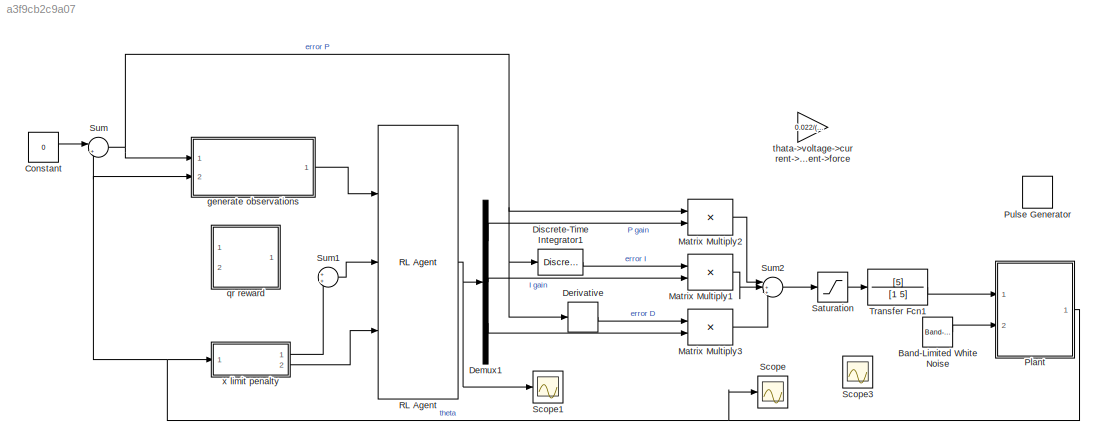
MODEL slx_a3f9cb2c9a07
KIND model
CONFIG AbsTol = auto
CONFIG EnableMultiTasking = off
CONFIG FixedStep = auto
CONFIG MaxStep = auto
CONFIG MinStep = auto
CONFIG RelTol = 1e-3
CONFIG SampleTimeConstraint = Unconstrained
CONFIG Solver = VariableStepAuto
CONFIG SolverName = VariableStepAuto
CONFIG StartTime = 0.0
CONFIG StopTime = 10.0
WORKSPACE source: mxarray member
WORKSPACE Kd = 10
WORKSPACE L = 0.5
WORKSPACE Ts = 0.5
WORKSPACE g = 9.81
WORKSPACE mCart = 1
WORKSPACE mPend = 1
WORKSPACE theta0 = 0
BLOCK [Reference] Band-Limited White Noise  REF=simulink/Sources/Band-Limited
White Noise
  Ports = [0, 1]
  SourceBlock = simulink/Sources/Band-Limited\nWhite Noise
  SourceProductBaseCode = SL
  SourceType = Band-Limited White Noise.
BLOCK [Constant] Constant
  Value = 0
BLOCK [Demux] Demux1
  Outputs = 3
  Ports = [1, 3]
BLOCK [Derivative] Derivative
BLOCK [DiscreteIntegrator] Discrete-Time Integrator1
  ICPrevOutput = DiscIntNeverNeededParam
  ICPrevScaledInput = DiscIntNeverNeededParam
  InitialConditionSetting = Auto
  Ports = [1, 1]
  SampleTime = 0.5
BLOCK [Product] Matrix Multiply1
  Inputs = **
  Ports = [2, 1]
BLOCK [Product] Matrix Multiply2
  Inputs = **
  Ports = [2, 1]
BLOCK [Product] Matrix Multiply3
  Inputs = **
  Ports = [2, 1]
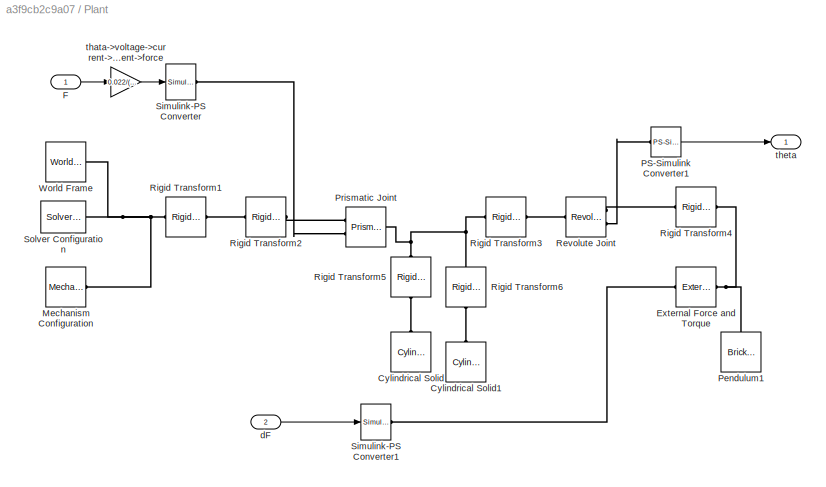
BLOCK [SubSystem] Plant
  Ports = [2, 1]
  RequestExecContextInheritance = off
BLOCK [Reference] Plant/Cylindrical Solid  REF=sm_lib/Body Elements/Cylindrical Solid
  NameLocation = right
  Ports = [0, 0, 0, 0, 0, 0, 1]
  SourceBlock = sm_lib/Body Elements/Cylindrical Solid
  SourceProductBaseCode = MS
  SourceType = Cylindrical Solid
BLOCK [Reference] Plant/Cylindrical Solid1  REF=sm_lib/Body Elements/Cylindrical Solid
  NameLocation = right
  Ports = [0, 0, 0, 0, 0, 0, 1]
  SourceBlock = sm_lib/Body Elements/Cylindrical Solid
  SourceProductBaseCode = MS
  SourceType = Cylindrical Solid
BLOCK [Reference] Plant/External Force and Torque  REF=sm_lib/Forces and
Torques/External Force
and Torque
  Ports = [0, 0, 0, 0, 0, 1, 1]
  SourceBlock = sm_lib/Forces and\nTorques/External Force\nand Torque
  SourceProductBaseCode = MS
  SourceType = External Force\nand Torque
BLOCK [Inport] Plant/F
BLOCK [Reference] Plant/Mechanism Configuration  REF=sm_lib/Utilities/Mechanism
Configuration
  Ports = [0, 0, 0, 0, 0, 0, 1]
  SourceBlock = sm_lib/Utilities/Mechanism\nConfiguration
  SourceProductBaseCode = MS
  SourceType = Mechanism\nConfiguration
BLOCK [Reference] Plant/PS-Simulink Converter1  REF=nesl_utility/PS-Simulink
Converter
  Ports = [0, 1, 0, 0, 0, 1]
  SourceBlock = nesl_utility/PS-Simulink\nConverter
  SourceProductBaseCode = MT,SS
  SourceType = PS-Simulink\nConverter
BLOCK [Reference] Plant/Pendulum1  REF=sm_lib/Body Elements/Brick Solid
  NameLocation = right
  Ports = [0, 0, 0, 0, 0, 0, 1]
  SourceBlock = sm_lib/Body Elements/Brick Solid
  SourceProductBaseCode = MS
  SourceType = Brick Solid
BLOCK [Reference] Plant/Prismatic Joint  REF=sm_lib/Joints/Prismatic
Joint
  Ports = [0, 0, 0, 0, 0, 2, 1]
  SourceBlock = sm_lib/Joints/Prismatic\nJoint
  SourceProductBaseCode = MS
  SourceType = Prismatic\nJoint
BLOCK [Reference] Plant/Revolute Joint  REF=sm_lib/Joints/Revolute Joint
  Ports = [0, 0, 0, 0, 0, 1, 2]
  SourceBlock = sm_lib/Joints/Revolute Joint
  SourceProductBaseCode = MS
  SourceType = Revolute Joint
BLOCK [Reference] Plant/Rigid Transform1  REF=sm_lib/Frames and
Transforms/Rigid
Transform
  Ports = [0, 0, 0, 0, 0, 1, 1]
  SourceBlock = sm_lib/Frames and\nTransforms/Rigid\nTransform
  SourceProductBaseCode = MS
  SourceType = Rigid\nTransform
BLOCK [Reference] Plant/Rigid Transform2  REF=sm_lib/Frames and
Transforms/Rigid
Transform
  Ports = [0, 0, 0, 0, 0, 1, 1]
  SourceBlock = sm_lib/Frames and\nTransforms/Rigid\nTransform
  SourceProductBaseCode = MS
  SourceType = Rigid\nTransform
BLOCK [Reference] Plant/Rigid Transform3  REF=sm_lib/Frames and
Transforms/Rigid
Transform
  Ports = [0, 0, 0, 0, 0, 1, 1]
  SourceBlock = sm_lib/Frames and\nTransforms/Rigid\nTransform
  SourceProductBaseCode = MS
  SourceType = Rigid\nTransform
BLOCK [Reference] Plant/Rigid Transform4  REF=sm_lib/Frames and
Transforms/Rigid
Transform
  Ports = [0, 0, 0, 0, 0, 1, 1]
  SourceBlock = sm_lib/Frames and\nTransforms/Rigid\nTransform
  SourceProductBaseCode = MS
  SourceType = Rigid\nTransform
BLOCK [Reference] Plant/Rigid Transform5  REF=sm_lib/Frames and
Transforms/Rigid
Transform
  NameLocation = left
  Ports = [0, 0, 0, 0, 0, 1, 1]
  SourceBlock = sm_lib/Frames and\nTransforms/Rigid\nTransform
  SourceProductBaseCode = MS
  SourceType = Rigid\nTransform
BLOCK [Reference] Plant/Rigid Transform6  REF=sm_lib/Frames and
Transforms/Rigid
Transform
  NameLocation = left
  Ports = [0, 0, 0, 0, 0, 1, 1]
  SourceBlock = sm_lib/Frames and\nTransforms/Rigid\nTransform
  SourceProductBaseCode = MS
  SourceType = Rigid\nTransform
BLOCK [Reference] Plant/Simulink-PS Converter  REF=nesl_utility/Simulink-PS
Converter
  Ports = [1, 0, 0, 0, 0, 0, 1]
  SourceBlock = nesl_utility/Simulink-PS\nConverter
  SourceProductBaseCode = MT,SS
  SourceType = Simulink-PS\nConverter
BLOCK [Reference] Plant/Simulink-PS Converter1  REF=nesl_utility/Simulink-PS
Converter
  Ports = [1, 0, 0, 0, 0, 0, 1]
  SourceBlock = nesl_utility/Simulink-PS\nConverter
  SourceProductBaseCode = MT,SS
  SourceType = Simulink-PS\nConverter
BLOCK [Reference] Plant/Solver Configuration  REF=nesl_utility/Solver
Configuration
  Ports = [0, 0, 0, 0, 0, 0, 1]
  SourceBlock = nesl_utility/Solver\nConfiguration
  SourceProductBaseCode = MT,SS
  SourceType = Solver\nConfiguration
BLOCK [Reference] Plant/World Frame  REF=sm_lib/Frames and
Transforms/World Frame
  Ports = [0, 0, 0, 0, 0, 0, 1]
  SourceBlock = sm_lib/Frames and\nTransforms/World Frame
  SourceProductBaseCode = MS
  SourceType = World Frame
BLOCK [Inport] Plant/dF
  Port = 2
BLOCK [Gain] Plant/thata->voltage->current->moment->force
  Gain = 0.022/(1.2*0.04)
BLOCK [Outport] Plant/theta
  VectorParamsAs1DForOutWhenUnconnected = off
BLOCK [DiscretePulseGenerator] Pulse Generator
  Amplitude = 0.5
  Commented = on
  Period = 10
  Ports = [0, 1]
  PulseType = Time based
BLOCK [Reference] RL Agent  REF=rllib/RL Agent
  Ports = [3, 1]
  SourceBlock = rllib/RL Agent
  SourceProductBaseCode = RL
  SourceType = RL Agent
BLOCK [Saturate] Saturation
  LowerLimit = -12
  UpperLimit = 12
BLOCK [Scope] Scope
  Floating = off
  NumInputPorts = 1
  Ports = [1]
  ScopeSpecificationString = Simulink.scopes.TimeScopeBlockCfg('CurrentConfiguration', extmgr.ConfigurationSet(extmgr.Configuration('Core','General UI',true),extmgr.Configuration('Core','Source UI',true),extmgr.Configuration('Sources','WiredSimulink',true,'DataLoggingVariableName','ScopeData1'),extmgr.Configuration('Visuals','Time Domain',true,'SerializedDisplays',{struct('MinYLimReal','-0.03604','MaxYLimReal','0.004','YLabel...<+1390ch>
BLOCK [Scope] Scope1
  Floating = off
  NumInputPorts = 1
  Ports = [1]
  ScopeSpecificationString = Simulink.scopes.TimeScopeBlockCfg('CurrentConfiguration', extmgr.ConfigurationSet(extmgr.Configuration('Core','General UI',true),extmgr.Configuration('Core','Source UI',true),extmgr.Configuration('Sources','WiredSimulink',true,'DataLoggingVariableName','ScopeData1'),extmgr.Configuration('Visuals','Time Domain',true,'SerializedDisplays',{struct('MinYLimReal','-40.94123','MaxYLimReal','121.13009','Y...<+1460ch>
BLOCK [Scope] Scope3
  Commented = on
  Floating = off
  NumInputPorts = 1
  Ports = [1]
  ScopeSpecificationString = Simulink.scopes.TimeScopeBlockCfg('CurrentConfiguration', extmgr.ConfigurationSet(extmgr.Configuration('Core','General UI',true),extmgr.Configuration('Core','Source UI',true),extmgr.Configuration('Sources','WiredSimulink',true,'DataLoggingVariableName','ScopeData1'),extmgr.Configuration('Visuals','Time Domain',true,'SerializedDisplays',{struct('MinYLimReal','-0.7063','MaxYLimReal','4.17639','YLabe...<+1435ch>
BLOCK [Sum] Sum
  Inputs = |+-
  Ports = [2, 1]
BLOCK [Sum] Sum1
  Ports = [2, 1]
BLOCK [Sum] Sum2
  Inputs = |+++
  Ports = [3, 1]
BLOCK [TransferFcn] Transfer Fcn1
  Denominator = [1 5]
  Numerator = [5]
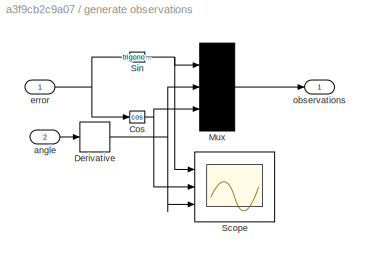
BLOCK [SubSystem] generate observations
  Ports = [2, 1]
  RequestExecContextInheritance = off
BLOCK [Trigonometry] generate observations/Cos
  Operator = cos
  Ports = [1, 1]
BLOCK [Derivative] generate observations/Derivative
BLOCK [Mux] generate observations/Mux
  DisplayOption = bar
  Inputs = 3
  Ports = [3, 1]
BLOCK [Scope] generate observations/Scope
  Floating = off
  NumInputPorts = 3
  Ports = [3]
  ScopeSpecificationString = Simulink.scopes.TimeScopeBlockCfg('CurrentConfiguration', extmgr.ConfigurationSet(extmgr.Configuration('Core','General UI',true),extmgr.Configuration('Core','Source UI',true),extmgr.Configuration('Sources','WiredSimulink',true,'DataLoggingVariableName','ScopeData2','DataLoggingSaveFormat','Array','DataLoggingLimitDataPoints',true,'DataLoggingDecimation','1'),extmgr.Configuration('Visuals','Time Do...<+1653ch>
BLOCK [Trigonometry] generate observations/Sin
  Ports = [1, 1]
BLOCK [Inport] generate observations/angle
  Port = 2
BLOCK [Inport] generate observations/error
BLOCK [Outport] generate observations/observations
  VectorParamsAs1DForOutWhenUnconnected = off
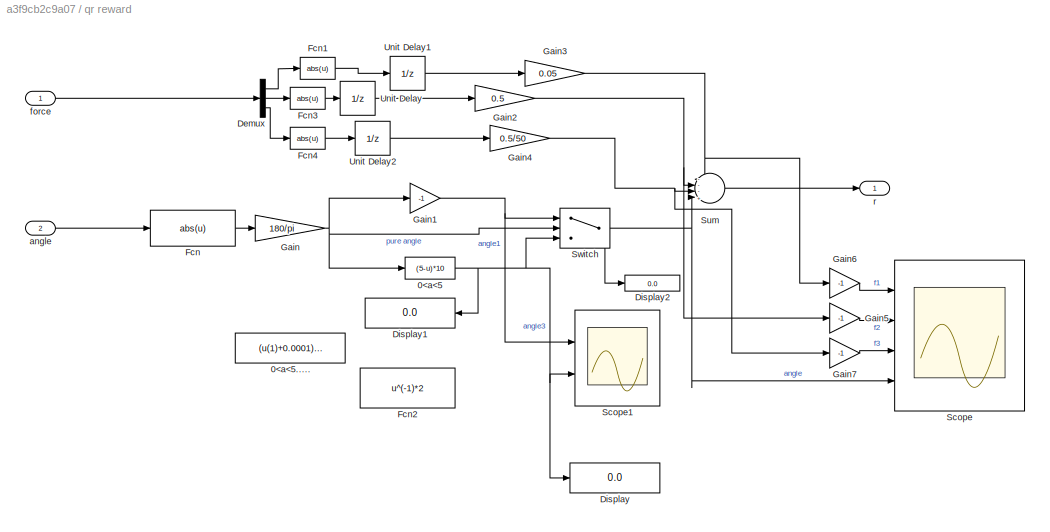
BLOCK [SubSystem] qr reward
  Ports = [2, 1]
  RequestExecContextInheritance = off
BLOCK [Fcn] qr reward/0<a<5
  Expr = (5-u)*10
BLOCK [Fcn] qr reward/0<a<5.....
  Expr = (u(1)+0.0001)^(-1)*10
BLOCK [Demux] qr reward/Demux
  Outputs = 3
  Ports = [1, 3]
BLOCK [Display] qr reward/Display
  Decimation = 1
  Ports = [1]
BLOCK [Display] qr reward/Display1
  Decimation = 1
  NameLocation = top
  Ports = [1]
BLOCK [Display] qr reward/Display2
  Decimation = 1
  Ports = [1]
BLOCK [Fcn] qr reward/Fcn
  Expr = abs(u)
BLOCK [Fcn] qr reward/Fcn1
  Expr = abs(u)
BLOCK [Fcn] qr reward/Fcn2
  Expr = u^(-1)*2
BLOCK [Fcn] qr reward/Fcn3
  Expr = abs(u)
BLOCK [Fcn] qr reward/Fcn4
  Expr = abs(u)
BLOCK [Gain] qr reward/Gain
  Gain = 180/pi
BLOCK [Gain] qr reward/Gain1
  Gain = -1
BLOCK [Gain] qr reward/Gain2
  Gain = 0.5
BLOCK [Gain] qr reward/Gain3
  Gain = 0.05
BLOCK [Gain] qr reward/Gain4
  Gain = 0.5/50
BLOCK [Gain] qr reward/Gain5
  Gain = -1
BLOCK [Gain] qr reward/Gain6
  Gain = -1
BLOCK [Gain] qr reward/Gain7
  Gain = -1
BLOCK [Scope] qr reward/Scope
  Floating = off
  NumInputPorts = 4
  Ports = [4]
  ScopeSpecificationString = Simulink.scopes.TimeScopeBlockCfg('CurrentConfiguration', extmgr.ConfigurationSet(extmgr.Configuration('Core','General UI',true),extmgr.Configuration('Core','Source UI',true),extmgr.Configuration('Sources','WiredSimulink',true,'DataLoggingVariableName','ScopeData1'),extmgr.Configuration('Visuals','Time Domain',true,'SerializedDisplays',{struct('MinYLimReal','-6.25','MaxYLimReal','56.25','YLabelRea...<+1417ch>
BLOCK [Scope] qr reward/Scope1
  Floating = off
  NumInputPorts = 2
  Ports = [2]
  ScopeSpecificationString = Simulink.scopes.TimeScopeBlockCfg('CurrentConfiguration', extmgr.ConfigurationSet(extmgr.Configuration('Core','General UI',true),extmgr.Configuration('Core','Source UI',true),extmgr.Configuration('Sources','WiredSimulink',true,'DataLoggingVariableName','ScopeData3'),extmgr.Configuration('Visuals','Time Domain',true,'SerializedDisplays',{struct('MinYLimReal','-6.25','MaxYLimReal','56.25','YLabelRea...<+1482ch>
BLOCK [Sum] qr reward/Sum
  Inputs = ---|+
  Ports = [4, 1]
BLOCK [Switch] qr reward/Switch
  Criteria = u2 > Threshold
  InputSameDT = off
  SaturateOnIntegerOverflow = off
  Threshold = 5
BLOCK [UnitDelay] qr reward/Unit Delay
  HasFrameUpgradeWarning = on
  SampleTime = 0.5
BLOCK [UnitDelay] qr reward/Unit Delay1
  HasFrameUpgradeWarning = on
  SampleTime = 0.5
BLOCK [UnitDelay] qr reward/Unit Delay2
  HasFrameUpgradeWarning = on
  SampleTime = 0.5
BLOCK [Inport] qr reward/angle
  Port = 2
BLOCK [Inport] qr reward/force
BLOCK [Outport] qr reward/r
  VectorParamsAs1DForOutWhenUnconnected = off
BLOCK [Gain] thata->voltage->current->moment->force
  Commented = on
  Gain = 0.022/(1.2*0.04)
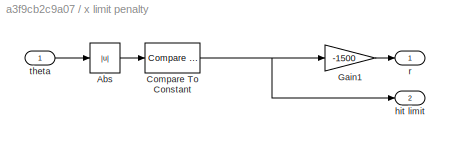
BLOCK [SubSystem] x limit penalty
  Ports = [1, 2]
  RequestExecContextInheritance = off
BLOCK [Abs] x limit penalty/Abs
  SaturateOnIntegerOverflow = off
BLOCK [Reference] x limit penalty/Compare To Constant  REF=simulink/Logic and Bit
Operations/Compare
To Constant
  Ports = [1, 1]
  SourceBlock = simulink/Logic and Bit\nOperations/Compare\nTo Constant
  SourceProductBaseCode = SL
  SourceType = Compare To Constant
BLOCK [Gain] x limit penalty/Gain1
  Gain = -1500
BLOCK [Outport] x limit penalty/hit limit
  Port = 2
  VectorParamsAs1DForOutWhenUnconnected = off
BLOCK [Outport] x limit penalty/r
  VectorParamsAs1DForOutWhenUnconnected = off
BLOCK [Inport] x limit penalty/theta
LINE Band-Limited White Noise:1 -> Plant:2
LINE Constant:1 -> Sum:1
LINE Demux1:1 -> Matrix Multiply2:2
LINE Demux1:2 -> Matrix Multiply1:2
LINE Demux1:3 -> Matrix Multiply3:2
LINE Derivative:1 -> Matrix Multiply3:1
LINE Discrete-Time Integrator1:1 -> Matrix Multiply1:1
LINE Matrix Multiply1:1 -> Sum2:2
LINE Matrix Multiply2:1 -> Sum2:1
LINE Matrix Multiply3:1 -> Sum2:3
LINE Plant/F:1 -> Plant/thata->voltage->current->moment->force:1
LINE Plant/PS-Simulink Converter1:1 -> Plant/theta:1
LINE Plant/dF:1 -> Plant/Simulink-PS Converter1:1
LINE Plant/thata->voltage->current->moment->force:1 -> Plant/Simulink-PS Converter:1
NET Plant:1 -> Scope:1, Sum:2, generate observations:2, x limit penalty:1
NET RL Agent:1 -> Demux1:1, Scope1:1
LINE Saturation:1 -> Transfer Fcn1:1
LINE Sum1:1 -> RL Agent:2
LINE Sum2:1 -> Saturation:1
NET Sum:1 -> Derivative:1, Discrete-Time Integrator1:1, Matrix Multiply2:1, generate observations:1
LINE Transfer Fcn1:1 -> Plant:1
NET generate observations/Cos:1 -> generate observations/Mux:3, generate observations/Scope:2
NET generate observations/Derivative:1 -> generate observations/Mux:2, generate observations/Scope:3
LINE generate observations/Mux:1 -> generate observations/observations:1
NET generate observations/Sin:1 -> generate observations/Mux:1, generate observations/Scope:1
LINE generate observations/angle:1 -> generate observations/Derivative:1
NET generate observations/error:1 -> generate observations/Cos:1, generate observations/Sin:1
LINE generate observations:1 -> RL Agent:1
NET qr reward/0<a<5:1 -> qr reward/Display1:1, qr reward/Display:1, qr reward/Scope1:2, qr reward/Switch:3
LINE qr reward/Demux:1 -> qr reward/Fcn1:1
LINE qr reward/Demux:2 -> qr reward/Fcn3:1
LINE qr reward/Demux:3 -> qr reward/Fcn4:1
LINE qr reward/Fcn1:1 -> qr reward/Unit Delay1:1
LINE qr reward/Fcn3:1 -> qr reward/Unit Delay:1
LINE qr reward/Fcn4:1 -> qr reward/Unit Delay2:1
LINE qr reward/Fcn:1 -> qr reward/Gain:1
NET qr reward/Gain1:1 -> qr reward/Scope1:1, qr reward/Switch:1
NET qr reward/Gain2:1 -> qr reward/Gain5:1, qr reward/Sum:2
NET qr reward/Gain3:1 -> qr reward/Gain6:1, qr reward/Sum:1
NET qr reward/Gain4:1 -> qr reward/Gain7:1, qr reward/Sum:3
LINE qr reward/Gain5:1 -> qr reward/Scope:2
LINE qr reward/Gain6:1 -> qr reward/Scope:1
LINE qr reward/Gain7:1 -> qr reward/Scope:3
NET qr reward/Gain:1 -> qr reward/0<a<5:1, qr reward/Gain1:1, qr reward/Switch:2
LINE qr reward/Sum:1 -> qr reward/r:1
NET qr reward/Switch:1 -> qr reward/Display2:1, qr reward/Scope:4, qr reward/Sum:4
LINE qr reward/Unit Delay1:1 -> qr reward/Gain3:1
LINE qr reward/Unit Delay2:1 -> qr reward/Gain4:1
LINE qr reward/Unit Delay:1 -> qr reward/Gain2:1
LINE qr reward/angle:1 -> qr reward/Fcn:1
LINE qr reward/force:1 -> qr reward/Demux:1
LINE x limit penalty/Abs:1 -> x limit penalty/Compare To Constant:1
NET x limit penalty/Compare To Constant:1 -> x limit penalty/Gain1:1, x limit penalty/hit limit:1
LINE x limit penalty/Gain1:1 -> x limit penalty/r:1
LINE x limit penalty/theta:1 -> x limit penalty/Abs:1
LINE x limit penalty:1 -> Sum1:2
LINE x limit penalty:2 -> RL Agent:3
PLINE Plant/Cylindrical Solid1:RConn1 -- Plant/Rigid Transform6:RConn1
PLINE Plant/Cylindrical Solid:RConn1 -- Plant/Rigid Transform5:RConn1
PLINE Plant/External Force and Torque:LConn1 -- Plant/Simulink-PS Converter1:RConn1
PNET net1: Plant/External Force and Torque:RConn1 -- Plant/Pendulum1:RConn1 -- Plant/Rigid Transform4:RConn1
PNET net2: Plant/Mechanism Configuration:RConn1 -- Plant/Rigid Transform1:LConn1 -- Plant/Solver Configuration:RConn1 -- Plant/World Frame:RConn1
PLINE Plant/PS-Simulink Converter1:LConn1 -- Plant/Revolute Joint:RConn2
PLINE Plant/Prismatic Joint:LConn1 -- Plant/Rigid Transform2:RConn1
PLINE Plant/Prismatic Joint:LConn2 -- Plant/Simulink-PS Converter:RConn1
PNET net3: Plant/Prismatic Joint:RConn1 -- Plant/Rigid Transform3:LConn1 -- Plant/Rigid Transform5:LConn1 -- Plant/Rigid Transform6:LConn1
PLINE Plant/Revolute Joint:LConn1 -- Plant/Rigid Transform3:RConn1
PLINE Plant/Revolute Joint:RConn1 -- Plant/Rigid Transform4:LConn1
PLINE Plant/Rigid Transform1:RConn1 -- Plant/Rigid Transform2:LConn1
note: NET lines group one-source signal fan-out (src -> all destinations, sorted); 1:1 wires keep LINE; PNET lines group multi-terminal physical nets as a canonical sorted terminal list (undirected conserving connections); 2-terminal nets keep the pairwise PLINE form
